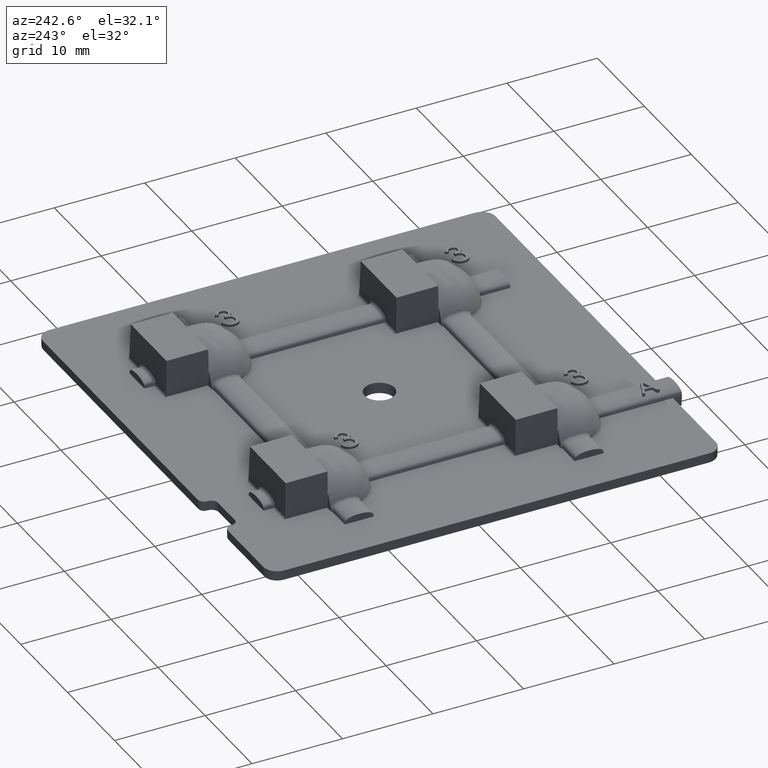
[diagram: clean part render]
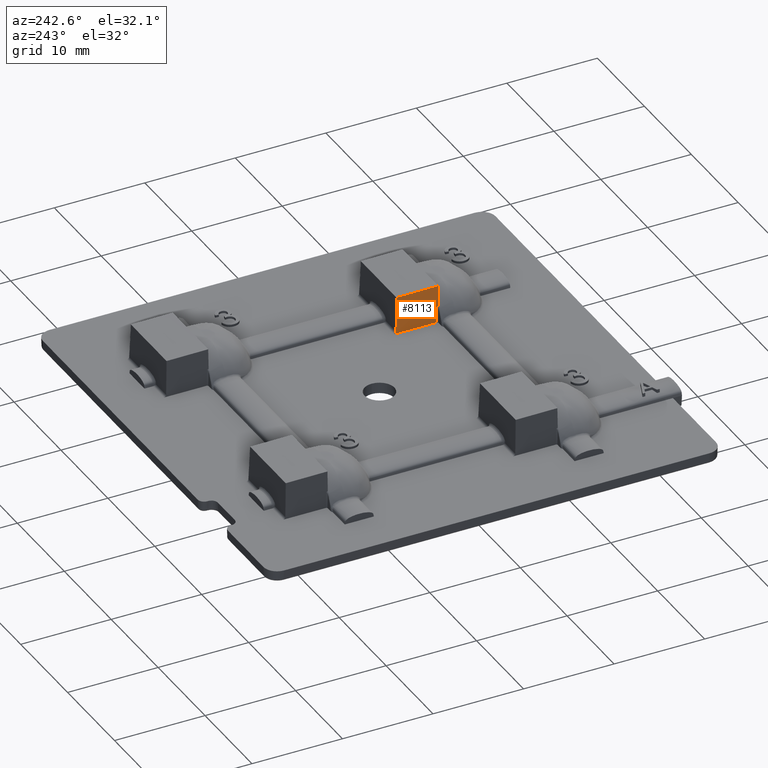
[diagram: same view with one face highlighted and labeled with its STEP entity id]
A machine part, auxiliary view. The second image highlights one B-rep face of the part: STEP entity #8113.
In plain terms, the highlighted planar face has unit normal (0.9994, -0, -0.0349).
Its self-contained STEP definition (entity closure, byte-faithful):
#736 = VECTOR ( 'NONE', #8882, 1000.000000000000000 ) ;
#1023 = LINE ( 'NONE', #22871, #736 ) ;
#1026 = VERTEX_POINT ( 'NONE', #20816 ) ;
#2226 = ORIENTED_EDGE ( 'NONE', *, *, #20864, .T. ) ;
#2295 = VERTEX_POINT ( 'NONE', #24165 ) ;
#2680 = CARTESIAN_POINT ( 'NONE',  ( 8.871111770509580600, -11.10000000000000500, 4.400000000000004800 ) ) ;
#3498 = CARTESIAN_POINT ( 'NONE',  ( 8.759365308135977900, -6.126760877113141200, 1.200000000000003100 ) ) ;
#3527 = CARTESIAN_POINT ( 'NONE',  ( 8.759365308135979700, -6.269571829794857700, 1.200000000000003300 ) ) ;
#3535 = CARTESIAN_POINT ( 'NONE',  ( 8.767820251018436700, -6.376636590772776000, 1.442117885874626900 ) ) ;
#3713 = CARTESIAN_POINT ( 'NONE',  ( 8.822790617187813200, -11.05167884667823600, 3.016263214555402700 ) ) ;
#3773 = DIRECTION ( 'NONE',  ( -1.224646799147353200E-016, -1.000000000000000000, -1.457912856127801100E-017 ) ) ;
#5712 = B_SPLINE_CURVE_WITH_KNOTS ( 'NONE', 3,
 ( #18897, #18927, #18842, #18815, #18788, #18762, #18754 ),
 .UNSPECIFIED., .F., .F.,
 ( 4, 3, 4 ),
 ( 4.336808689942017700E-019, 0.001973207275934851600, 0.004603712864690814900 ),
 .UNSPECIFIED. ) ;
#6356 = ORIENTED_EDGE ( 'NONE', *, *, #6562, .T. ) ;
#6523 = CARTESIAN_POINT ( 'NONE',  ( 9.194620995337063000, -11.10000000000000500, 13.66409210151860900 ) ) ;
#6562 = EDGE_CURVE ( 'NONE', #1026, #18789, #5712, .T. ) ;
#6653 = EDGE_CURVE ( 'NONE', #16294, #14840, #12632, .T. ) ;
#6669 = CARTESIAN_POINT ( 'NONE',  ( 9.201147335196592900, -6.768063520027248500, 13.85098202274642400 ) ) ;
#6701 = EDGE_CURVE ( 'NONE', #19153, #21930, #19050, .T. ) ;
#6957 = EDGE_CURVE ( 'NONE', #22408, #19153, #22460, .T. ) ;
#7618 = ORIENTED_EDGE ( 'NONE', *, *, #6957, .T. ) ;
#7922 = LINE ( 'NONE', #6669, #10214 ) ;
#8113 = ADVANCED_FACE ( 'NONE', ( #25100 ), #25216, .F. ) ;
#8437 = CARTESIAN_POINT ( 'NONE',  ( 8.821524411245771800, -10.90050401668333400, 2.980003820490774400 ) ) ;
#8636 = DIRECTION ( 'NONE',  ( 0.03488216769587905400, -0.03150926929211728800, 0.9988945891962341900 ) ) ;
#8882 = DIRECTION ( 'NONE',  ( -1.224646799147353200E-016, -1.000000000000000000, 0.0000000000000000000 ) ) ;
#9384 = EDGE_CURVE ( 'NONE', #21930, #2295, #16540, .T. ) ;
#9451 = LINE ( 'NONE', #12532, #24940 ) ;
#9532 = DIRECTION ( 'NONE',  ( 0.03487826274237793700, -0.03487826274237469000, 0.9987827659587180700 ) ) ;
#9593 = CARTESIAN_POINT ( 'NONE',  ( 9.196356200523716500, -11.27533580596124600, 13.71378187674143900 ) ) ;
#10214 = VECTOR ( 'NONE', #8636, 1000.000000000000000 ) ;
#11060 = CARTESIAN_POINT ( 'NONE',  ( 8.767820251018436700, -6.376636590772776000, 1.442117885874626900 ) ) ;
#11650 = EDGE_CURVE ( 'NONE', #16294, #18789, #7922, .T. ) ;
#12532 = CARTESIAN_POINT ( 'NONE',  ( 9.194620995337063000, -11.10000000000000500, 13.66409210151860900 ) ) ;
#12632 =( BOUNDED_CURVE ( )  B_SPLINE_CURVE ( 3, ( #3535, #16787, #3527, #3498 ),
 .UNSPECIFIED., .F., .T. ) 
 B_SPLINE_CURVE_WITH_KNOTS ( ( 4, 4 ),
 ( 4.743922662667367600, 6.283185307179586200 ),
 .UNSPECIFIED. ) 
 CURVE ( )  GEOMETRIC_REPRESENTATION_ITEM ( )  RATIONAL_B_SPLINE_CURVE ( ( 1.000000000000000000, 0.8121115135893091100, 0.8121115135893091100, 1.000000000000000000 ) ) 
 REPRESENTATION_ITEM ( '' )  );
#13450 = CARTESIAN_POINT ( 'NONE',  ( 8.900423840814415400, -6.496402180999172800, 5.238879226568172100 ) ) ;
#13540 = CARTESIAN_POINT ( 'NONE',  ( 8.822790617187813200, -11.00436109436495100, 3.016263214555402700 ) ) ;
#13565 = CARTESIAN_POINT ( 'NONE',  ( 8.821524411245771800, -10.90050401668333400, 2.980003820490774400 ) ) ;
#13656 = CARTESIAN_POINT ( 'NONE',  ( 8.822790617187800800, -10.96662240740258400, 3.016263214555033700 ) ) ;
#14581 = DIRECTION ( 'NONE',  ( 0.03489949670250429300, -4.273955692857548600E-018, 0.9993908270190955400 ) ) ;
#14840 = VERTEX_POINT ( 'NONE', #25584 ) ;
#14873 = ORIENTED_EDGE ( 'NONE', *, *, #24323, .T. ) ;
#15665 = VECTOR ( 'NONE', #3773, 1000.000000000000000 ) ;
#15955 = VECTOR ( 'NONE', #24414, 1000.000000000000200 ) ;
#16294 = VERTEX_POINT ( 'NONE', #11060 ) ;
#16540 = LINE ( 'NONE', #3713, #15665 ) ;
#16649 = CARTESIAN_POINT ( 'NONE',  ( 8.822339328474784600, -10.92956291365032900, 3.003339996665382200 ) ) ;
#16766 = EDGE_CURVE ( 'NONE', #25270, #1026, #9451, .T. ) ;
#16787 = CARTESIAN_POINT ( 'NONE',  ( 8.762835661956842200, -6.372133981863219000, 1.299377930995600000 ) ) ;
#18001 = ORIENTED_EDGE ( 'NONE', *, *, #6701, .T. ) ;
#18754 = CARTESIAN_POINT ( 'NONE',  ( 8.900423840814415400, -6.496402180999172800, 5.238879226568172100 ) ) ;
#18762 = CARTESIAN_POINT ( 'NONE',  ( 8.900667507427472800, -7.373206579503191800, 5.246365568343789800 ) ) ;
#18788 = CARTESIAN_POINT ( 'NONE',  ( 8.900778870485924100, -8.250042250991692000, 5.249554589092087800 ) ) ;
#18789 = VERTEX_POINT ( 'NONE', #13450 ) ;
#18815 = CARTESIAN_POINT ( 'NONE',  ( 8.900979223440803200, -9.126859842637738800, 5.255291947053975400 ) ) ;
#18835 = ORIENTED_EDGE ( 'NONE', *, *, #9384, .T. ) ;
#18842 = CARTESIAN_POINT ( 'NONE',  ( 8.901129512941782500, -9.784581503780776400, 5.259595675269762800 ) ) ;
#18897 = CARTESIAN_POINT ( 'NONE',  ( 8.901702777607972900, -11.09999923118901100, 5.271616364205780100 ) ) ;
#18927 = CARTESIAN_POINT ( 'NONE',  ( 8.901303420361637500, -10.44230125191616500, 5.264575732192420300 ) ) ;
#19050 = B_SPLINE_CURVE_WITH_KNOTS ( 'NONE', 3,
 ( #13565, #16649, #13656, #13540 ),
 .UNSPECIFIED., .F., .F.,
 ( 4, 4 ),
 ( -2.452040321862222800E-006, 0.0001093824190961620800 ),
 .UNSPECIFIED. ) ;
#19153 = VERTEX_POINT ( 'NONE', #8437 ) ;
#19353 = ORIENTED_EDGE ( 'NONE', *, *, #6653, .T. ) ;
#20657 = LINE ( 'NONE', #6523, #15955 ) ;
#20816 = CARTESIAN_POINT ( 'NONE',  ( 8.901702777607972900, -11.09999923118901100, 5.271616364205780100 ) ) ;
#20864 = EDGE_CURVE ( 'NONE', #14840, #22408, #1023, .T. ) ;
#20866 = AXIS2_PLACEMENT_3D ( 'NONE', #25155, #25149, #25089 ) ;
#21179 = VECTOR ( 'NONE', #9532, 1000.000000000000200 ) ;
#21930 = VERTEX_POINT ( 'NONE', #23564 ) ;
#22306 = ORIENTED_EDGE ( 'NONE', *, *, #11650, .F. ) ;
#22408 = VERTEX_POINT ( 'NONE', #23829 ) ;
#22460 = LINE ( 'NONE', #9593, #21179 ) ;
#22647 = ORIENTED_EDGE ( 'NONE', *, *, #16766, .T. ) ;
#22871 = CARTESIAN_POINT ( 'NONE',  ( 8.759365308135977900, -12.70000000000000300, 1.200000000000003100 ) ) ;
#23564 = CARTESIAN_POINT ( 'NONE',  ( 8.822790617187813200, -11.00436109436495100, 3.016263214555402700 ) ) ;
#23829 = CARTESIAN_POINT ( 'NONE',  ( 8.759365308135977900, -10.83834491357354300, 1.200000000000003100 ) ) ;
#24165 = CARTESIAN_POINT ( 'NONE',  ( 8.822790617086345900, -11.09999999999999800, 3.016263214441322400 ) ) ;
#24323 = EDGE_CURVE ( 'NONE', #2295, #25270, #20657, .T. ) ;
#24414 = DIRECTION ( 'NONE',  ( 0.03489949670250429300, -4.273955692857548600E-018, 0.9993908270190955400 ) ) ;
#24940 = VECTOR ( 'NONE', #14581, 1000.000000000000200 ) ;
#25089 = DIRECTION ( 'NONE',  ( -0.03489949670250429300, 4.273955692857548600E-018, -0.9993908270190955400 ) ) ;
#25100 = FACE_OUTER_BOUND ( 'NONE', #25325, .T. ) ;
#25149 = DIRECTION ( 'NONE',  ( 0.9993908270190956500, -1.223900777406161700E-016, -0.03489949670250430000 ) ) ;
#25155 = CARTESIAN_POINT ( 'NONE',  ( 9.194620995337063000, -12.70000000000000300, 13.66409210151860900 ) ) ;
#25216 = PLANE ( 'NONE',  #20866 ) ;
#25270 = VERTEX_POINT ( 'NONE', #2680 ) ;
#25325 = EDGE_LOOP ( 'NONE', ( #2226, #7618, #18001, #18835, #14873, #22647, #6356, #22306, #19353 ) ) ;
#25584 = CARTESIAN_POINT ( 'NONE',  ( 8.759365308135977900, -6.126760877113141200, 1.200000000000003100 ) ) ;